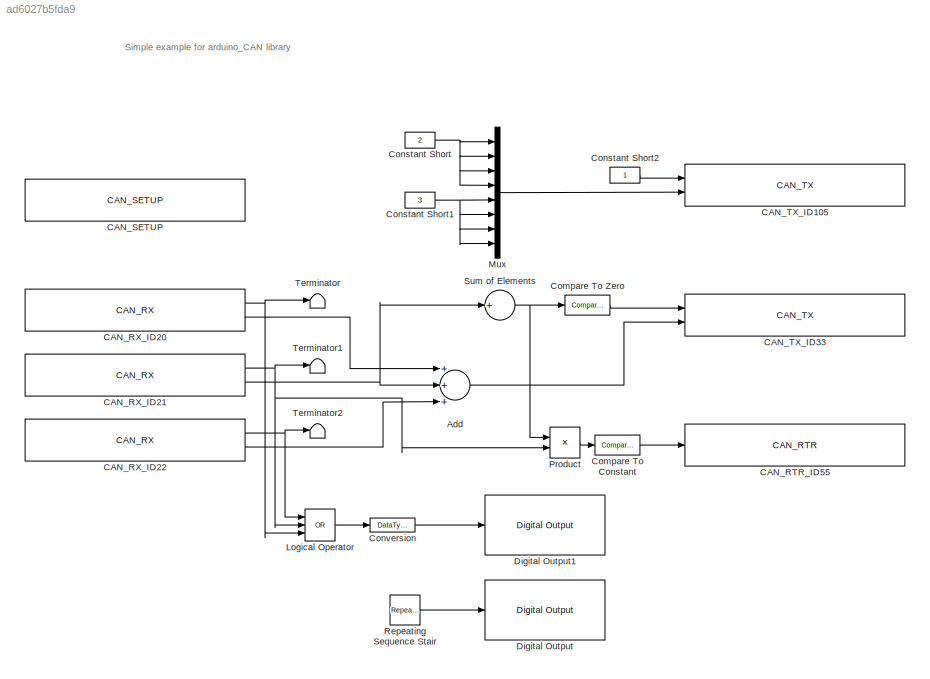
MODEL slx_ad6027b5fda9
KIND model
CONFIG AbsTol = auto
CONFIG EnableMultiTasking = on
CONFIG FixedStep = 0.1
CONFIG MaxStep = auto
CONFIG MinStep = auto
CONFIG RelTol = 1e-3
CONFIG SampleTimeConstraint = Unconstrained
CONFIG Solver = FixedStepDiscrete
CONFIG SolverName = FixedStepDiscrete
CONFIG StartTime = 0.0
CONFIG StopTime = 10.0
BLOCK [Sum] Add
  InputSameDT = off
  Inputs = +++
  OutDataTypeStr = Inherit: Inherit via internal rule
  Ports = [3, 1]
  SaturateOnIntegerOverflow = off
BLOCK [Reference] CAN_RTR_ID55  REF=arduino_CAN_library/CAN_RTR
  Ports = [1]
  SourceBlock = arduino_CAN_library/CAN_RTR
  SourceType = arduino_CAN_rtr_msg
BLOCK [Reference] CAN_RX_ID20  REF=arduino_CAN_library/CAN_RX
  Ports = [0, 2]
  SourceBlock = arduino_CAN_library/CAN_RX
  SourceType = arduino_CAN_rx_msg
BLOCK [Reference] CAN_RX_ID21  REF=arduino_CAN_library/CAN_RX
  Ports = [0, 2]
  SourceBlock = arduino_CAN_library/CAN_RX
  SourceType = arduino_CAN_rx_msg
BLOCK [Reference] CAN_RX_ID22  REF=arduino_CAN_library/CAN_RX
  Ports = [0, 2]
  SourceBlock = arduino_CAN_library/CAN_RX
  SourceType = arduino_CAN_rx_msg
BLOCK [Reference] CAN_SETUP  REF=arduino_CAN_library/CAN_SETUP
  Ports = []
  SourceBlock = arduino_CAN_library/CAN_SETUP
  SourceType = arduino_CAN_setup
BLOCK [Reference] CAN_TX_ID105  REF=arduino_CAN_library/CAN_TX
  Ports = [2]
  SourceBlock = arduino_CAN_library/CAN_TX
  SourceType = arduino_CAN_tx_msg
BLOCK [Reference] CAN_TX_ID33  REF=arduino_CAN_library/CAN_TX
  Ports = [2]
  SourceBlock = arduino_CAN_library/CAN_TX
  SourceType = arduino_CAN_tx_msg
BLOCK [Reference] Compare To Constant  REF=simulink/Logic and Bit
Operations/Compare
To Constant
  Ports = [1, 1]
  SourceBlock = simulink/Logic and Bit\nOperations/Compare\nTo Constant
  SourceProductBaseCode = SL
  SourceProductName = Simulink
  SourceType = Compare To Constant
BLOCK [Reference] Compare To Zero  REF=simulink/Logic and Bit
Operations/Compare
To Zero
  Ports = [1, 1]
  SourceBlock = simulink/Logic and Bit\nOperations/Compare\nTo Zero
  SourceProductBaseCode = SL
  SourceProductName = Simulink
  SourceType = Compare To Zero
BLOCK [Constant] Constant Short
  OutDataTypeStr = uint8
  Value = 2
BLOCK [Constant] Constant Short1
  OutDataTypeStr = uint8
  Value = 3
BLOCK [Constant] Constant Short2
  OutDataTypeStr = uint8
BLOCK [DataTypeConversion] Conversion
  OutDataTypeStr = uint8
  RndMeth = Floor
  SaturateOnIntegerOverflow = off
BLOCK [Reference] Digital Output  REF=arduinolib/Digital Output
  Ports = [1]
  SourceBlock = arduinolib/Digital Output
  SourceProductBaseCode = ARDUINO
  SourceProductName = Simulink Support Package for Arduino Hardware
  SourceType = Arduino Digital Output
BLOCK [Reference] Digital Output1  REF=arduinolib/Digital Output
  Ports = [1]
  SourceBlock = arduinolib/Digital Output
  SourceProductBaseCode = ARDUINO
  SourceProductName = Simulink Support Package for Arduino Hardware
  SourceType = Arduino Digital Output
BLOCK [Logic] Logical Operator
  AllPortsSameDT = off
  Inputs = 3
  Operator = OR
  OutDataTypeStr = boolean
  Ports = [3, 1]
BLOCK [Mux] Mux
  DisplayOption = bar
  Inputs = 8
  Ports = [8, 1]
BLOCK [Product] Product
  InputSameDT = off
  OutDataTypeStr = Inherit: Inherit via internal rule
  Ports = [2, 1]
  SaturateOnIntegerOverflow = off
BLOCK [Reference] Repeating Sequence Stair  REF=simulink/Sources/Repeating
Sequence
Stair
  Ports = [0, 1]
  SourceBlock = simulink/Sources/Repeating\nSequence\nStair
  SourceProductBaseCode = SL
  SourceProductName = Simulink
  SourceType = Repeating Sequence Stair
BLOCK [Sum] Sum of Elements
  InputSameDT = off
  Inputs = +
  OutDataTypeStr = Inherit: Inherit via internal rule
  Ports = [1, 1]
  SaturateOnIntegerOverflow = off
BLOCK [Terminator] Terminator
BLOCK [Terminator] Terminator1
BLOCK [Terminator] Terminator2
ANNOTATION (root): Simple example for arduino_CAN library
LINE Add:1 -> CAN_TX_ID33:2
NET CAN_RX_ID20:1 -> Logical Operator:3, Terminator:1
LINE CAN_RX_ID20:2 -> Add:1
NET CAN_RX_ID21:1 -> Logical Operator:2, Product:2, Terminator1:1
NET CAN_RX_ID21:2 -> Add:2, Sum of Elements:1
NET CAN_RX_ID22:1 -> Logical Operator:1, Terminator2:1
LINE CAN_RX_ID22:2 -> Add:3
LINE Compare To Constant:1 -> CAN_RTR_ID55:1
LINE Compare To Zero:1 -> CAN_TX_ID33:1
NET Constant Short1:1 -> Mux:5, Mux:6, Mux:7, Mux:8
LINE Constant Short2:1 -> CAN_TX_ID105:1
NET Constant Short:1 -> Mux:1, Mux:2, Mux:3, Mux:4
LINE Conversion:1 -> Digital Output1:1
LINE Logical Operator:1 -> Conversion:1
LINE Mux:1 -> CAN_TX_ID105:2
LINE Product:1 -> Compare To Constant:1
LINE Repeating Sequence Stair:1 -> Digital Output:1
NET Sum of Elements:1 -> Compare To Zero:1, Product:1
note: NET lines group one-source signal fan-out (src -> all destinations, sorted); 1:1 wires keep LINE
